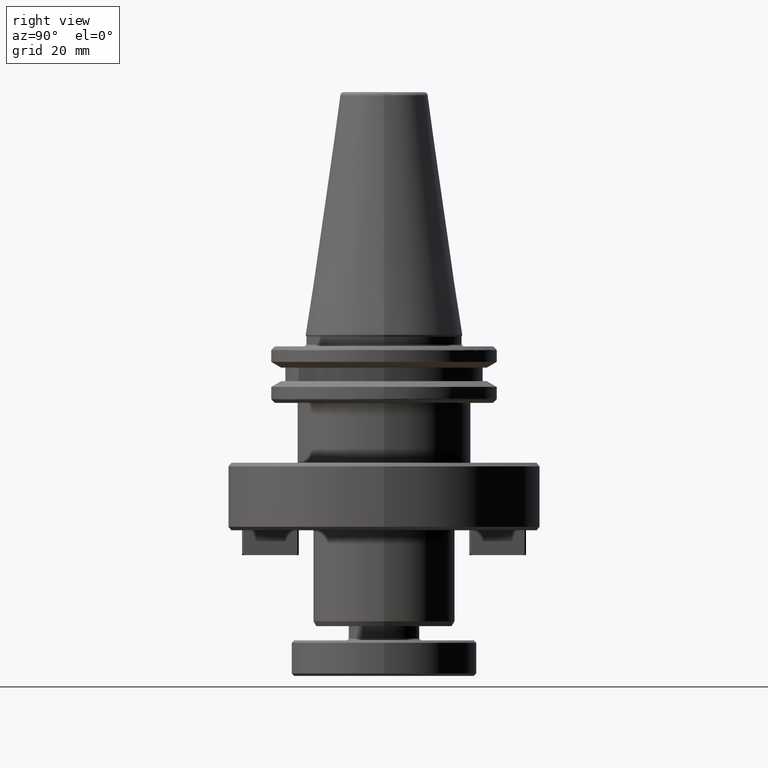
[diagram: clean part render]
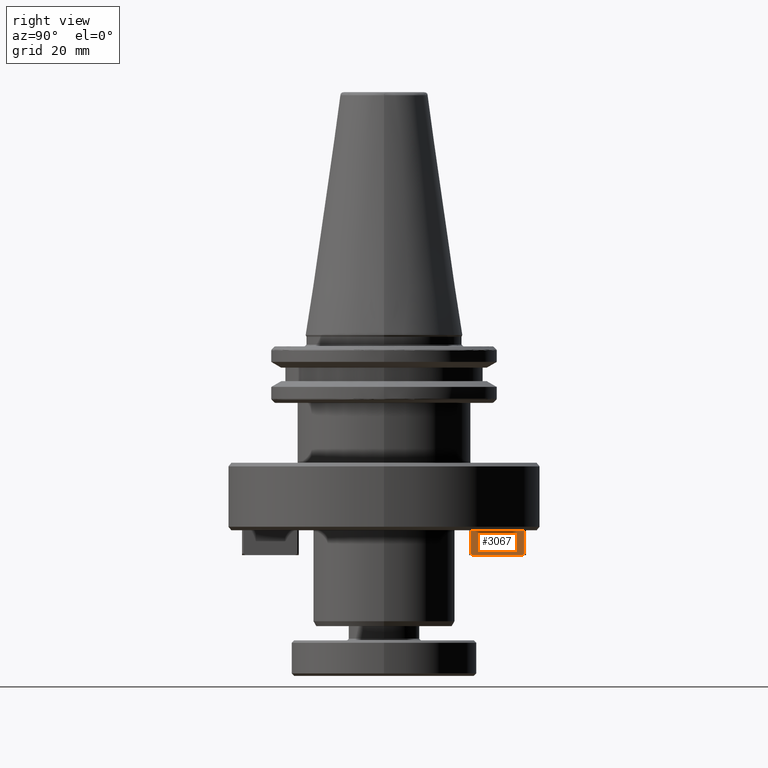
[diagram: same view with one face highlighted and labeled with its STEP entity id]
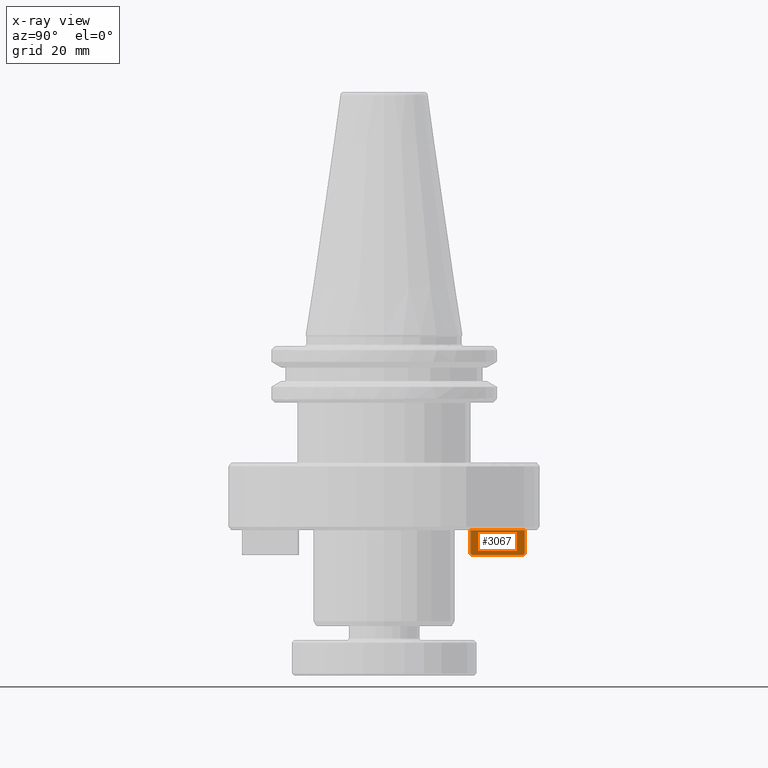
[diagram: x-ray of the same camera — body ghosted, the highlighted face saturated]
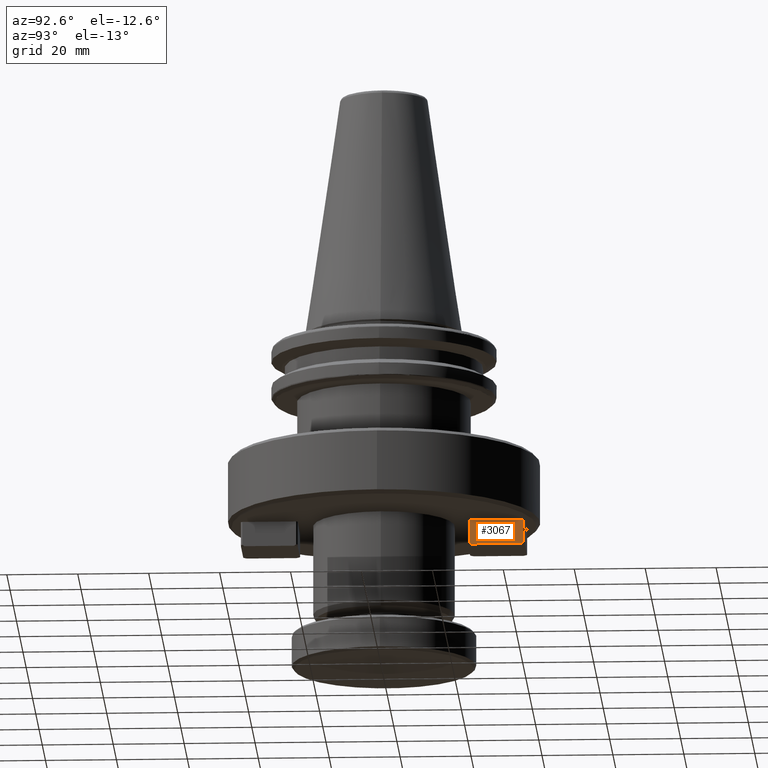
[diagram: same view with one face highlighted and labeled with its STEP entity id]
A machine part, right view. The second image highlights one B-rep face of the part: STEP entity #3067.
The next image is the same camera in x-ray: the body ghosted, the highlighted face saturated — about 0% of this face is hidden behind the body in this view.
A second angle (auxiliary view) of the same face is appended — the face is thin or edge-on in the first view.
In plain terms, the highlighted planar face has unit normal (-1, 0, 0).
Its self-contained STEP definition (entity closure, byte-faithful):
#89 = EDGE_CURVE ( 'NONE', #861, #170, #3317, .T. ) ;
#144 = CARTESIAN_POINT ( 'NONE',  ( 8.000000000000003600, 24.40000000000004500, -62.00000000000000700 ) ) ;
#170 = VERTEX_POINT ( 'NONE', #1467 ) ;
#355 = CARTESIAN_POINT ( 'NONE',  ( 8.000000000000028400, 39.59999999999998700, -55.00000000000000700 ) ) ;
#396 = ORIENTED_EDGE ( 'NONE', *, *, #1517, .F. ) ;
#398 = CARTESIAN_POINT ( 'NONE',  ( 8.000000000000021300, 39.03431457505075700, -62.00000000000001400 ) ) ;
#781 = DIRECTION ( 'NONE',  ( -2.503857664561837900E-015, -0.8164965809277013900, 0.5773502691896605900 ) ) ;
#861 = VERTEX_POINT ( 'NONE', #355 ) ;
#1040 = ORIENTED_EDGE ( 'NONE', *, *, #1454, .F. ) ;
#1103 = EDGE_LOOP ( 'NONE', ( #1040, #396, #3123, #4378, #4236, #3834 ) ) ;
#1148 = VECTOR ( 'NONE', #2105, 1000.000000000000000 ) ;
#1206 = EDGE_CURVE ( 'NONE', #861, #2233, #1646, .T. ) ;
#1236 = EDGE_CURVE ( 'NONE', #170, #1871, #1914, .T. ) ;
#1294 = CARTESIAN_POINT ( 'NONE',  ( 8.000000000000028400, 40.00000000000002800, -62.00000000000000700 ) ) ;
#1309 = DIRECTION ( 'NONE',  ( -1.000000000000000000, 1.517883041479706200E-015, 0.0000000000000000000 ) ) ;
#1336 = EDGE_CURVE ( 'NONE', #2793, #2233, #2779, .T. ) ;
#1454 = EDGE_CURVE ( 'NONE', #3966, #2793, #3003, .T. ) ;
#1467 = CARTESIAN_POINT ( 'NONE',  ( 8.000000000000028400, 39.59999999999999400, -61.60000000000002300 ) ) ;
#1517 = EDGE_CURVE ( 'NONE', #1871, #3966, #3909, .T. ) ;
#1646 = LINE ( 'NONE', #3931, #1148 ) ;
#1708 = CARTESIAN_POINT ( 'NONE',  ( 8.000000000000010700, 24.40000000000004800, -55.00000000000000700 ) ) ;
#1871 = VERTEX_POINT ( 'NONE', #398 ) ;
#1914 = LINE ( 'NONE', #3564, #1917 ) ;
#1917 = VECTOR ( 'NONE', #2465, 1000.000000000000000 ) ;
#2105 = DIRECTION ( 'NONE',  ( 0.0000000000000000000, -1.000000000000000000, -0.0000000000000000000 ) ) ;
#2233 = VERTEX_POINT ( 'NONE', #1708 ) ;
#2276 = CARTESIAN_POINT ( 'NONE',  ( 8.000000000000028400, 39.59999999999998700, -62.00000000000000700 ) ) ;
#2286 = DIRECTION ( 'NONE',  ( -0.0000000000000000000, -0.0000000000000000000, -1.000000000000000000 ) ) ;
#2465 = DIRECTION ( 'NONE',  ( -2.503857664561949500E-015, -0.8164965809277328100, -0.5773502691896162900 ) ) ;
#2570 = CARTESIAN_POINT ( 'NONE',  ( 8.000000000000005300, 24.96568542494928500, -62.00000000000000700 ) ) ;
#2691 = PLANE ( 'NONE',  #3761 ) ;
#2779 = LINE ( 'NONE', #144, #2834 ) ;
#2793 = VERTEX_POINT ( 'NONE', #3523 ) ;
#2834 = VECTOR ( 'NONE', #3883, 1000.000000000000000 ) ;
#3003 = LINE ( 'NONE', #2570, #3389 ) ;
#3067 = ADVANCED_FACE ( 'NONE', ( #4158 ), #2691, .F. ) ;
#3123 = ORIENTED_EDGE ( 'NONE', *, *, #1236, .F. ) ;
#3317 = LINE ( 'NONE', #2276, #3545 ) ;
#3389 = VECTOR ( 'NONE', #781, 1000.000000000000000 ) ;
#3523 = CARTESIAN_POINT ( 'NONE',  ( 8.000000000000007100, 24.40000000000004800, -61.59999999999997300 ) ) ;
#3545 = VECTOR ( 'NONE', #2286, 1000.000000000000000 ) ;
#3564 = CARTESIAN_POINT ( 'NONE',  ( 8.000000000000028400, 39.59999999999998700, -61.60000000000002300 ) ) ;
#3710 = DIRECTION ( 'NONE',  ( -1.517883041479706200E-015, -1.000000000000000000, 0.0000000000000000000 ) ) ;
#3761 = AXIS2_PLACEMENT_3D ( 'NONE', #1294, #1309, #3710 ) ;
#3834 = ORIENTED_EDGE ( 'NONE', *, *, #1336, .F. ) ;
#3883 = DIRECTION ( 'NONE',  ( 0.0000000000000000000, 0.0000000000000000000, 1.000000000000000000 ) ) ;
#3909 = LINE ( 'NONE', #3929, #3912 ) ;
#3912 = VECTOR ( 'NONE', #4213, 1000.000000000000000 ) ;
#3929 = CARTESIAN_POINT ( 'NONE',  ( 8.000000000000028400, 40.00000000000002800, -62.00000000000001400 ) ) ;
#3931 = CARTESIAN_POINT ( 'NONE',  ( 8.000000000000028400, 43.00000000000000000, -55.00000000000000700 ) ) ;
#3966 = VERTEX_POINT ( 'NONE', #4037 ) ;
#4037 = CARTESIAN_POINT ( 'NONE',  ( 8.000000000000007100, 24.96568542494928900, -62.00000000000001400 ) ) ;
#4158 = FACE_OUTER_BOUND ( 'NONE', #1103, .T. ) ;
#4213 = DIRECTION ( 'NONE',  ( -1.517883041479706200E-015, -1.000000000000000000, 0.0000000000000000000 ) ) ;
#4236 = ORIENTED_EDGE ( 'NONE', *, *, #1206, .T. ) ;
#4378 = ORIENTED_EDGE ( 'NONE', *, *, #89, .F. ) ;